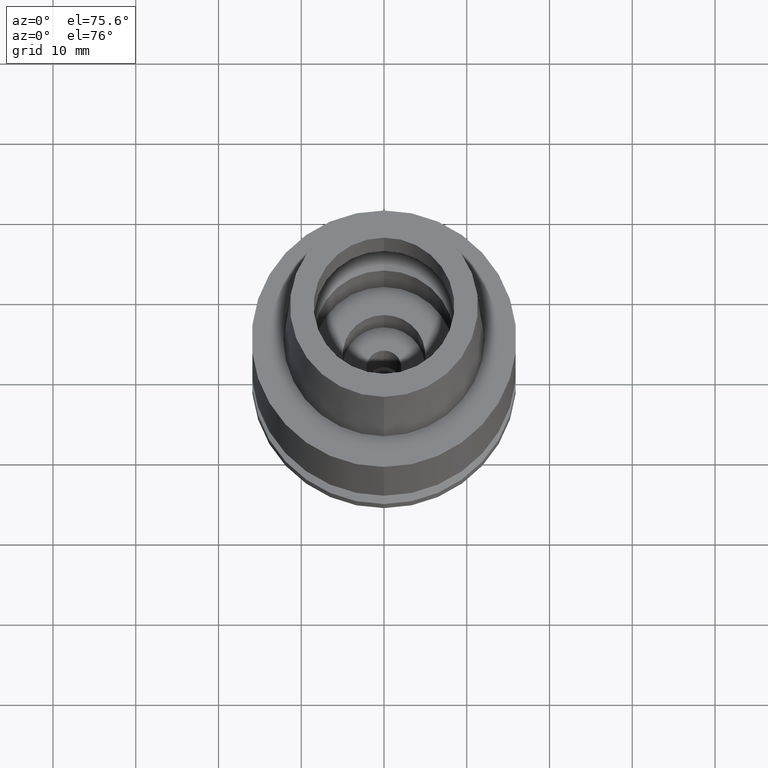
[diagram: clean part render]
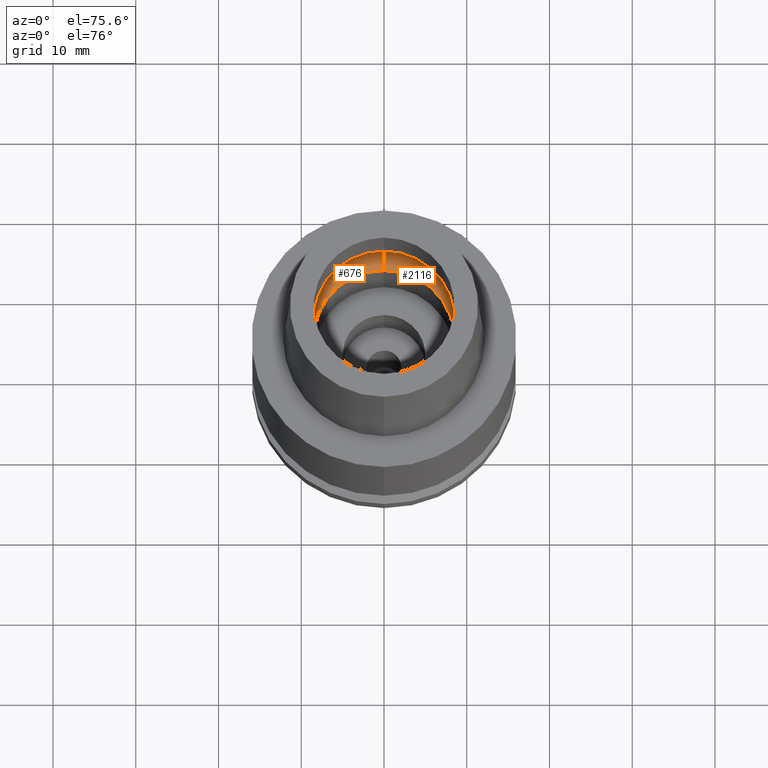
[diagram: same view with one multi-face feature highlighted, each face labeled with its STEP entity id]
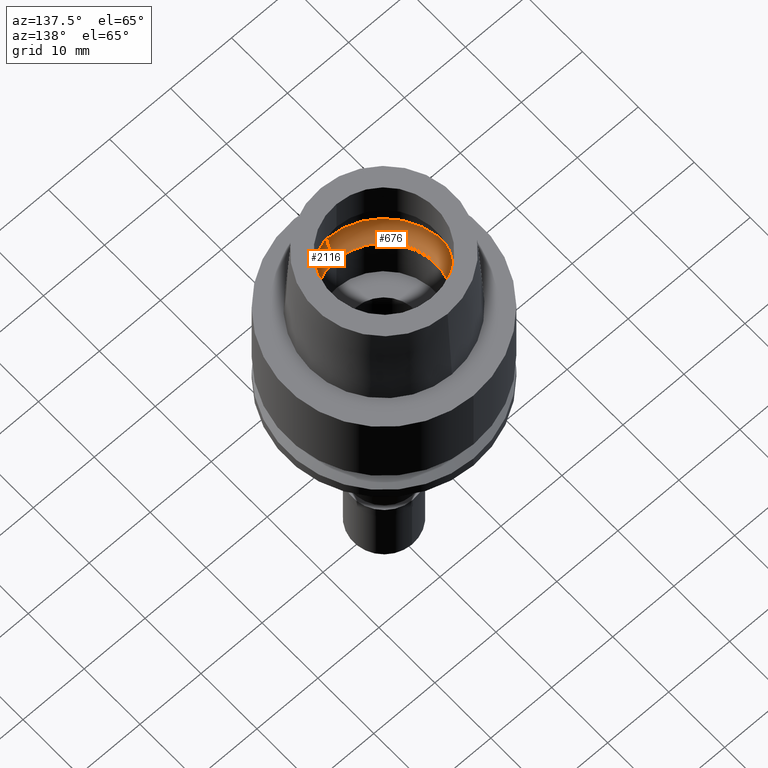
[diagram: same view with one multi-face feature highlighted, each face labeled with its STEP entity id]
A machine part, auxiliary view. The highlighted faces form ONE feature: a constant-radius fillet chain: 2 tangent blend faces with common blend radius 4 mm. The faces share edges in the B-rep.
A second angle (auxiliary view) of the same feature is appended — it is thin or edge-on in the first view.
Their STEP definitions:
[1] entity #676 (Torus):
#48 = FACE_OUTER_BOUND ( 'NONE', #2604, .T. ) ;
#170 = ORIENTED_EDGE ( 'NONE', *, *, #2202, .F. ) ;
#376 = CARTESIAN_POINT ( 'NONE',  ( 0.0000000000000000000, 10.25000000000000000, 3.357000000000000206 ) ) ;
#449 = EDGE_CURVE ( 'NONE', #631, #1393, #1220, .T. ) ;
#631 = VERTEX_POINT ( 'NONE', #896 ) ;
#666 = VERTEX_POINT ( 'NONE', #1076 ) ;
#676 = ADVANCED_FACE ( 'NONE', ( #48 ), #889, .F. ) ;
#778 = DIRECTION ( 'NONE',  ( 0.0000000000000000000, -0.5624999999999932276, -0.8267972847076892062 ) ) ;
#818 = EDGE_CURVE ( 'NONE', #1021, #631, #2440, .T. ) ;
#824 = EDGE_CURVE ( 'NONE', #666, #1393, #2184, .T. ) ;
#889 = TOROIDAL_SURFACE ( 'NONE', #2398, 6.250000000000000000, 4.000000000000000000 ) ;
#896 = CARTESIAN_POINT ( 'NONE',  ( 0.0000000000000000000, -10.25000000000000000, 3.357000000000000206 ) ) ;
#1021 = VERTEX_POINT ( 'NONE', #2603 ) ;
#1076 = CARTESIAN_POINT ( 'NONE',  ( 0.0000000000000000000, 8.500000000000000000, 0.04981086116925999979 ) ) ;
#1100 = DIRECTION ( 'NONE',  ( 0.0000000000000000000, 0.0000000000000000000, -1.000000000000000000 ) ) ;
#1117 = ORIENTED_EDGE ( 'NONE', *, *, #824, .T. ) ;
#1118 = DIRECTION ( 'NONE',  ( 0.0000000000000000000, 0.0000000000000000000, -1.000000000000000000 ) ) ;
#1194 = CARTESIAN_POINT ( 'NONE',  ( 0.0000000000000000000, 6.250000000000000000, 3.357000000000000206 ) ) ;
#1220 = CIRCLE ( 'NONE', #2266, 10.25000000000000000 ) ;
#1302 = CARTESIAN_POINT ( 'NONE',  ( 0.0000000000000000000, 0.0000000000000000000, 3.357000000000000206 ) ) ;
#1393 = VERTEX_POINT ( 'NONE', #376 ) ;
#1410 = DIRECTION ( 'NONE',  ( 0.0000000000000000000, 1.000000000000000000, 0.0000000000000000000 ) ) ;
#1466 = CARTESIAN_POINT ( 'NONE',  ( 0.0000000000000000000, 0.0000000000000000000, 0.04981086116925999979 ) ) ;
#1706 = ORIENTED_EDGE ( 'NONE', *, *, #449, .F. ) ;
#1775 = AXIS2_PLACEMENT_3D ( 'NONE', #1466, #2297, #1410 ) ;
#1821 = ORIENTED_EDGE ( 'NONE', *, *, #818, .F. ) ;
#1835 = DIRECTION ( 'NONE',  ( -1.000000000000000000, 0.0000000000000000000, 0.0000000000000000000 ) ) ;
#1875 = DIRECTION ( 'NONE',  ( 1.000000000000000000, 0.0000000000000000000, 0.0000000000000000000 ) ) ;
#2015 = AXIS2_PLACEMENT_3D ( 'NONE', #2021, #1835, #778 ) ;
#2021 = CARTESIAN_POINT ( 'NONE',  ( 0.0000000000000000000, -6.250000000000000000, 3.357000000000000206 ) ) ;
#2118 = CARTESIAN_POINT ( 'NONE',  ( 0.0000000000000000000, 0.0000000000000000000, 3.357000000000000206 ) ) ;
#2141 = DIRECTION ( 'NONE',  ( 0.0000000000000000000, -1.000000000000000000, 0.0000000000000000000 ) ) ;
#2184 = CIRCLE ( 'NONE', #2317, 3.999999999999999112 ) ;
#2202 = EDGE_CURVE ( 'NONE', #666, #1021, #2549, .T. ) ;
#2266 = AXIS2_PLACEMENT_3D ( 'NONE', #2118, #1118, #2570 ) ;
#2297 = DIRECTION ( 'NONE',  ( 0.0000000000000000000, 0.0000000000000000000, 1.000000000000000000 ) ) ;
#2317 = AXIS2_PLACEMENT_3D ( 'NONE', #1194, #1875, #2473 ) ;
#2398 = AXIS2_PLACEMENT_3D ( 'NONE', #1302, #1100, #2141 ) ;
#2440 = CIRCLE ( 'NONE', #2015, 3.999999999999999112 ) ;
#2473 = DIRECTION ( 'NONE',  ( 0.0000000000000000000, 0.5624999999999932276, -0.8267972847076892062 ) ) ;
#2549 = CIRCLE ( 'NONE', #1775, 8.500000000000000000 ) ;
#2570 = DIRECTION ( 'NONE',  ( 0.0000000000000000000, -1.000000000000000000, 0.0000000000000000000 ) ) ;
#2603 = CARTESIAN_POINT ( 'NONE',  ( 0.0000000000000000000, -8.500000000000000000, 0.04981086116925999979 ) ) ;
#2604 = EDGE_LOOP ( 'NONE', ( #1706, #1821, #170, #1117 ) ) ;
[2] entity #2116 (Torus):
#147 = DIRECTION ( 'NONE',  ( 0.0000000000000000000, 0.0000000000000000000, -1.000000000000000000 ) ) ;
#272 = TOROIDAL_SURFACE ( 'NONE', #2205, 6.250000000000000000, 4.000000000000000000 ) ;
#376 = CARTESIAN_POINT ( 'NONE',  ( 0.0000000000000000000, 10.25000000000000000, 3.357000000000000206 ) ) ;
#418 = EDGE_LOOP ( 'NONE', ( #1883, #645, #709, #1673 ) ) ;
#491 = CIRCLE ( 'NONE', #2036, 8.500000000000000000 ) ;
#528 = CARTESIAN_POINT ( 'NONE',  ( 0.0000000000000000000, 0.0000000000000000000, 3.357000000000000206 ) ) ;
#554 = CARTESIAN_POINT ( 'NONE',  ( 0.0000000000000000000, 0.0000000000000000000, 0.04981086116925999979 ) ) ;
#614 = CARTESIAN_POINT ( 'NONE',  ( 0.0000000000000000000, 0.0000000000000000000, 3.357000000000000206 ) ) ;
#631 = VERTEX_POINT ( 'NONE', #896 ) ;
#645 = ORIENTED_EDGE ( 'NONE', *, *, #818, .T. ) ;
#666 = VERTEX_POINT ( 'NONE', #1076 ) ;
#709 = ORIENTED_EDGE ( 'NONE', *, *, #840, .F. ) ;
#778 = DIRECTION ( 'NONE',  ( 0.0000000000000000000, -0.5624999999999932276, -0.8267972847076892062 ) ) ;
#818 = EDGE_CURVE ( 'NONE', #1021, #631, #2440, .T. ) ;
#824 = EDGE_CURVE ( 'NONE', #666, #1393, #2184, .T. ) ;
#840 = EDGE_CURVE ( 'NONE', #1393, #631, #2611, .T. ) ;
#896 = CARTESIAN_POINT ( 'NONE',  ( 0.0000000000000000000, -10.25000000000000000, 3.357000000000000206 ) ) ;
#963 = DIRECTION ( 'NONE',  ( 0.0000000000000000000, -1.000000000000000000, 0.0000000000000000000 ) ) ;
#1021 = VERTEX_POINT ( 'NONE', #2603 ) ;
#1076 = CARTESIAN_POINT ( 'NONE',  ( 0.0000000000000000000, 8.500000000000000000, 0.04981086116925999979 ) ) ;
#1167 = DIRECTION ( 'NONE',  ( 0.0000000000000000000, 0.0000000000000000000, -1.000000000000000000 ) ) ;
#1194 = CARTESIAN_POINT ( 'NONE',  ( 0.0000000000000000000, 6.250000000000000000, 3.357000000000000206 ) ) ;
#1390 = DIRECTION ( 'NONE',  ( 0.0000000000000000000, 0.0000000000000000000, 1.000000000000000000 ) ) ;
#1393 = VERTEX_POINT ( 'NONE', #376 ) ;
#1443 = DIRECTION ( 'NONE',  ( 0.0000000000000000000, 1.000000000000000000, 0.0000000000000000000 ) ) ;
#1673 = ORIENTED_EDGE ( 'NONE', *, *, #824, .F. ) ;
#1835 = DIRECTION ( 'NONE',  ( -1.000000000000000000, 0.0000000000000000000, 0.0000000000000000000 ) ) ;
#1875 = DIRECTION ( 'NONE',  ( 1.000000000000000000, 0.0000000000000000000, 0.0000000000000000000 ) ) ;
#1883 = ORIENTED_EDGE ( 'NONE', *, *, #2397, .F. ) ;
#2015 = AXIS2_PLACEMENT_3D ( 'NONE', #2021, #1835, #778 ) ;
#2021 = CARTESIAN_POINT ( 'NONE',  ( 0.0000000000000000000, -6.250000000000000000, 3.357000000000000206 ) ) ;
#2036 = AXIS2_PLACEMENT_3D ( 'NONE', #554, #1390, #2424 ) ;
#2116 = ADVANCED_FACE ( 'NONE', ( #2191 ), #272, .F. ) ;
#2184 = CIRCLE ( 'NONE', #2317, 3.999999999999999112 ) ;
#2191 = FACE_OUTER_BOUND ( 'NONE', #418, .T. ) ;
#2205 = AXIS2_PLACEMENT_3D ( 'NONE', #528, #1167, #963 ) ;
#2274 = AXIS2_PLACEMENT_3D ( 'NONE', #614, #147, #1443 ) ;
#2317 = AXIS2_PLACEMENT_3D ( 'NONE', #1194, #1875, #2473 ) ;
#2397 = EDGE_CURVE ( 'NONE', #1021, #666, #491, .T. ) ;
#2424 = DIRECTION ( 'NONE',  ( 0.0000000000000000000, -1.000000000000000000, 0.0000000000000000000 ) ) ;
#2440 = CIRCLE ( 'NONE', #2015, 3.999999999999999112 ) ;
#2473 = DIRECTION ( 'NONE',  ( 0.0000000000000000000, 0.5624999999999932276, -0.8267972847076892062 ) ) ;
#2603 = CARTESIAN_POINT ( 'NONE',  ( 0.0000000000000000000, -8.500000000000000000, 0.04981086116925999979 ) ) ;
#2611 = CIRCLE ( 'NONE', #2274, 10.25000000000000000 ) ;